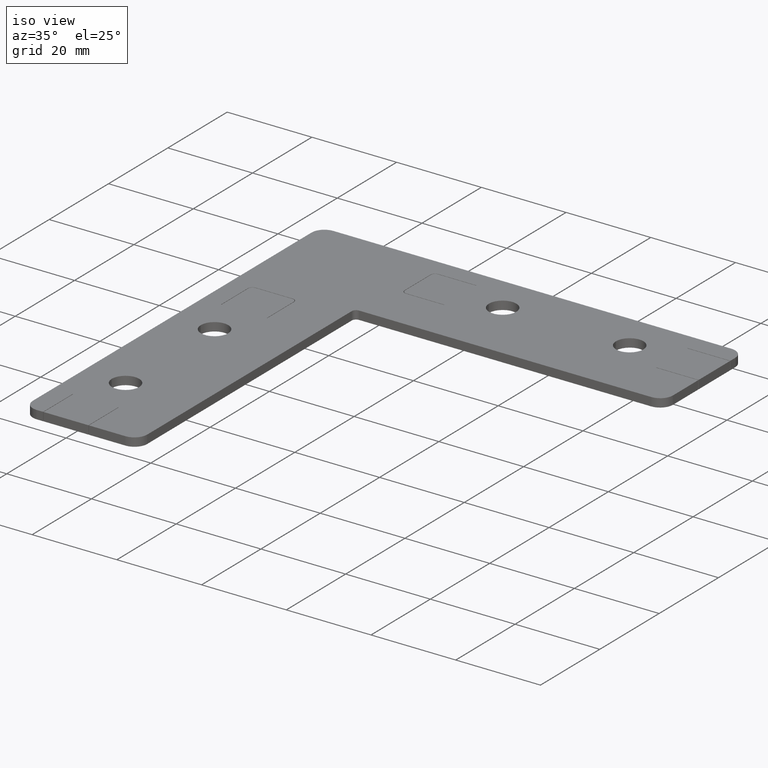
[diagram: clean part render]
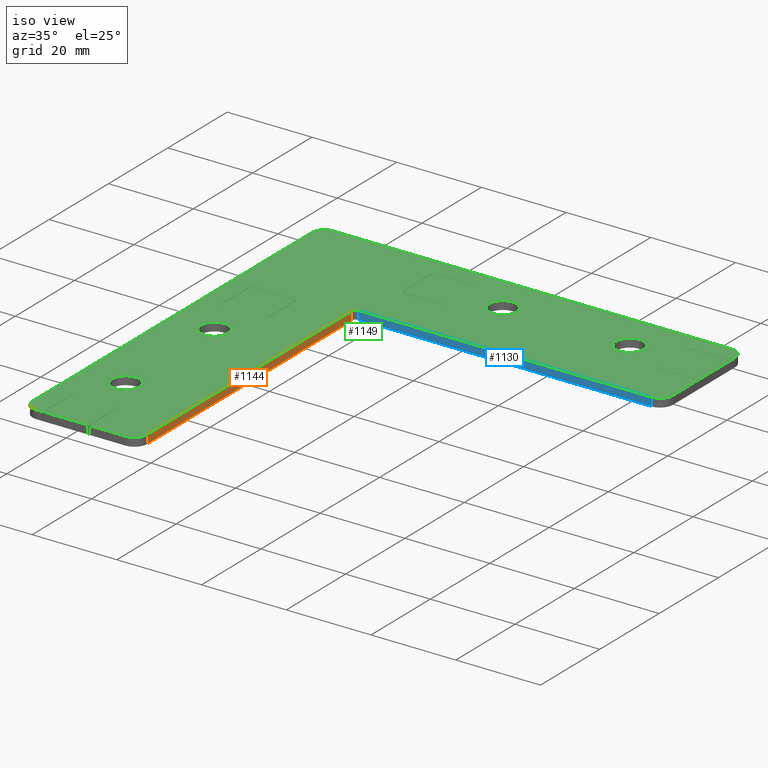
[diagram: same view with three faces highlighted in distinct colors, each labeled with its STEP entity id]
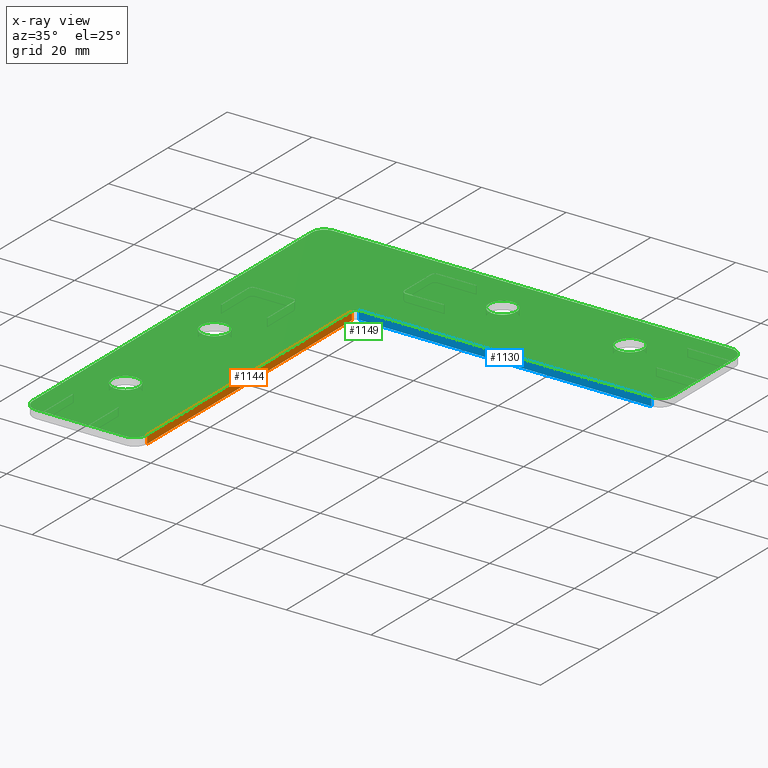
[diagram: x-ray of the same camera — body ghosted, the three highlighted faces saturated]
A machine part, iso view with three faces highlighted in distinct colors.
The next image is the same camera in x-ray (body ghosted, the three faces saturated) — at least one of them is partly hidden behind the body in this view.
Their STEP definitions:

[orange] entity #1144 — the highlighted planar face has unit normal (-1, 0, 0).
#36=PLANE('',#1237);
#82=FACE_OUTER_BOUND('',#140,.T.);
#140=EDGE_LOOP('',(#835,#836,#837,#838));
#231=LINE('',#1630,#363);
#268=LINE('',#1730,#400);
#269=LINE('',#1733,#401);
#270=LINE('',#1734,#402);
#363=VECTOR('',#1308,2.);
#400=VECTOR('',#1395,2.);
#401=VECTOR('',#1400,68.9998597412109);
#402=VECTOR('',#1401,68.9998597412109);
#495=VERTEX_POINT('',#1628);
#496=VERTEX_POINT('',#1629);
#533=VERTEX_POINT('',#1727);
#534=VERTEX_POINT('',#1729);
#607=EDGE_CURVE('',#495,#496,#231,.T.);
#655=EDGE_CURVE('',#534,#533,#268,.T.);
#657=EDGE_CURVE('',#533,#496,#269,.T.);
#658=EDGE_CURVE('',#534,#495,#270,.T.);
#835=ORIENTED_EDGE('',*,*,#655,.T.);
#836=ORIENTED_EDGE('',*,*,#657,.T.);
#837=ORIENTED_EDGE('',*,*,#607,.F.);
#838=ORIENTED_EDGE('',*,*,#658,.F.);
#1144=ADVANCED_FACE('',(#82),#36,.F.);
#1237=AXIS2_PLACEMENT_3D('',#1732,#1398,#1399);
#1308=DIRECTION('',(0.,0.,-1.));
#1395=DIRECTION('',(0.,0.,-1.));
#1398=DIRECTION('center_axis',(-1.,0.,0.));
#1399=DIRECTION('ref_axis',(0.,0.,1.));
#1400=DIRECTION('',(0.,1.,0.));
#1401=DIRECTION('',(0.,1.,0.));
#1628=CARTESIAN_POINT('',(17.05,71.9998597412109,0.));
#1629=CARTESIAN_POINT('',(17.05,71.9998597412109,-2.));
#1630=CARTESIAN_POINT('',(17.05,71.9998597412109,0.));
#1727=CARTESIAN_POINT('',(17.05,3.,-2.));
#1729=CARTESIAN_POINT('',(17.05,3.,0.));
#1730=CARTESIAN_POINT('',(17.05,3.,0.));
#1732=CARTESIAN_POINT('Origin',(17.05,3.,0.));
#1733=CARTESIAN_POINT('',(17.05,3.,-2.));
#1734=CARTESIAN_POINT('',(17.05,3.,0.));

[blue] entity #1130 — the highlighted planar face has unit normal (0, 1, 0).
#27=PLANE('',#1213);
#68=FACE_OUTER_BOUND('',#126,.T.);
#126=EDGE_LOOP('',(#779,#780,#781,#782));
#232=LINE('',#1634,#364);
#233=LINE('',#1638,#365);
#234=LINE('',#1640,#366);
#235=LINE('',#1641,#367);
#364=VECTOR('',#1311,2.);
#365=VECTOR('',#1316,68.9998597412108);
#366=VECTOR('',#1317,2.);
#367=VECTOR('',#1318,68.9998597412108);
#497=VERTEX_POINT('',#1631);
#498=VERTEX_POINT('',#1633);
#499=VERTEX_POINT('',#1637);
#500=VERTEX_POINT('',#1639);
#609=EDGE_CURVE('',#498,#497,#232,.T.);
#611=EDGE_CURVE('',#497,#499,#233,.T.);
#612=EDGE_CURVE('',#500,#499,#234,.T.);
#613=EDGE_CURVE('',#498,#500,#235,.T.);
#779=ORIENTED_EDGE('',*,*,#609,.T.);
#780=ORIENTED_EDGE('',*,*,#611,.T.);
#781=ORIENTED_EDGE('',*,*,#612,.F.);
#782=ORIENTED_EDGE('',*,*,#613,.F.);
#1130=ADVANCED_FACE('',(#68),#27,.F.);
#1213=AXIS2_PLACEMENT_3D('',#1636,#1314,#1315);
#1311=DIRECTION('',(0.,0.,-1.));
#1314=DIRECTION('center_axis',(0.,1.,0.));
#1315=DIRECTION('ref_axis',(0.,0.,1.));
#1316=DIRECTION('',(1.,0.,0.));
#1317=DIRECTION('',(0.,0.,-1.));
#1318=DIRECTION('',(1.,0.,0.));
#1631=CARTESIAN_POINT('',(18.05,72.9998597412109,-2.));
#1633=CARTESIAN_POINT('',(18.05,72.9998597412109,0.));
#1634=CARTESIAN_POINT('',(18.05,72.9998597412109,0.));
#1636=CARTESIAN_POINT('Origin',(18.05,72.9998597412109,0.));
#1637=CARTESIAN_POINT('',(87.0498597412109,72.9998597412109,-2.));
#1638=CARTESIAN_POINT('',(18.05,72.9998597412109,-2.));
#1639=CARTESIAN_POINT('',(87.0498597412109,72.9998597412109,0.));
#1640=CARTESIAN_POINT('',(87.0498597412109,72.9998597412109,0.));
#1641=CARTESIAN_POINT('',(18.05,72.9998597412109,0.));

[green] entity #1149 — the highlighted planar face has unit normal (0, 0, 1).
#15=FACE_BOUND('',#146,.T.);
#16=FACE_BOUND('',#147,.T.);
#17=FACE_BOUND('',#148,.T.);
#18=FACE_BOUND('',#149,.T.);
#19=FACE_BOUND('',#150,.T.);
#20=FACE_BOUND('',#151,.T.);
#37=PLANE('',#1250);
#87=FACE_OUTER_BOUND('',#145,.T.);
#145=EDGE_LOOP('',(#855,#856,#857,#858,#859,#860,#861,#862,#863,#864,#865,
#866,#867,#868,#869,#870,#871,#872,#873,#874,#875,#876,#877,#878,#879,#880,
#881,#882));
#146=EDGE_LOOP('',(#883));
#147=EDGE_LOOP('',(#884));
#148=EDGE_LOOP('',(#885));
#149=EDGE_LOOP('',(#886));
#150=EDGE_LOOP('',(#887,#888,#889,#890,#891,#892,#893,#894,#895,#896,#897,
#898));
#151=EDGE_LOOP('',(#899,#900,#901,#902,#903,#904,#905,#906,#907,#908,#909,
#910));
#196=CIRCLE('',#1212,1.);
#198=CIRCLE('',#1216,3.);
#200=CIRCLE('',#1222,3.);
#202=CIRCLE('',#1226,3.);
#204=CIRCLE('',#1230,3.);
#206=CIRCLE('',#1236,3.);
#207=CIRCLE('',#1239,3.25);
#209=CIRCLE('',#1242,3.25);
#211=CIRCLE('',#1245,3.25);
#213=CIRCLE('',#1248,3.25);
#215=CIRCLE('',#1251,1.1);
#216=CIRCLE('',#1252,1.1);
#217=CIRCLE('',#1253,1.);
#218=CIRCLE('',#1254,1.);
#219=CIRCLE('',#1255,1.1);
#220=CIRCLE('',#1256,1.09999999999989);
#221=CIRCLE('',#1257,0.999999999999886);
#222=CIRCLE('',#1258,1.);
#235=LINE('',#1641,#367);
#239=LINE('',#1653,#371);
#240=LINE('',#1657,#372);
#247=LINE('',#1671,#379);
#251=LINE('',#1683,#383);
#255=LINE('',#1695,#387);
#259=LINE('',#1707,#391);
#260=LINE('',#1711,#392);
#267=LINE('',#1725,#399);
#270=LINE('',#1734,#402);
#275=LINE('',#1761,#407);
#276=LINE('',#1763,#408);
#277=LINE('',#1764,#409);
#278=LINE('',#1766,#410);
#279=LINE('',#1768,#411);
#280=LINE('',#1769,#412);
#281=LINE('',#1771,#413);
#282=LINE('',#1773,#414);
#283=LINE('',#1774,#415);
#284=LINE('',#1776,#416);
#285=LINE('',#1778,#417);
#286=LINE('',#1779,#418);
#287=LINE('',#1782,#419);
#288=LINE('',#1784,#420);
#289=LINE('',#1788,#421);
#290=LINE('',#1792,#422);
#291=LINE('',#1794,#423);
#292=LINE('',#1796,#424);
#293=LINE('',#1800,#425);
#294=LINE('',#1803,#426);
#295=LINE('',#1806,#427);
#296=LINE('',#1808,#428);
#297=LINE('',#1812,#429);
#298=LINE('',#1816,#430);
#299=LINE('',#1818,#431);
#300=LINE('',#1820,#432);
#301=LINE('',#1824,#433);
#302=LINE('',#1827,#434);
#367=VECTOR('',#1318,68.9998597412108);
#371=VECTOR('',#1330,8.55000000000002);
#372=VECTOR('',#1333,1.65000000000003);
#379=VECTOR('',#1342,10.6);
#383=VECTOR('',#1354,93.9998597412108);
#387=VECTOR('',#1366,93.9998597412109);
#391=VECTOR('',#1378,1.55000000000004);
#392=VECTOR('',#1381,8.65000000000004);
#399=VECTOR('',#1390,10.5999999999999);
#402=VECTOR('',#1401,68.9998597412109);
#407=VECTOR('',#1432,9.99999999999998);
#408=VECTOR('',#1433,0.0999999999999979);
#409=VECTOR('',#1434,9.99999999999998);
#410=VECTOR('',#1435,9.99999999999998);
#411=VECTOR('',#1436,0.0999999999999979);
#412=VECTOR('',#1437,9.99999999999998);
#413=VECTOR('',#1438,10.);
#414=VECTOR('',#1439,0.0999999999999945);
#415=VECTOR('',#1440,10.);
#416=VECTOR('',#1441,10.);
#417=VECTOR('',#1442,0.0999999999999923);
#418=VECTOR('',#1443,10.);
#419=VECTOR('',#1444,0.0999999999999945);
#420=VECTOR('',#1445,9.);
#421=VECTOR('',#1448,8.69999999999993);
#422=VECTOR('',#1451,9.);
#423=VECTOR('',#1452,0.0999999999999979);
#424=VECTOR('',#1453,9.);
#425=VECTOR('',#1456,8.69999999999993);
#426=VECTOR('',#1459,9.);
#427=VECTOR('',#1460,0.0999999999999979);
#428=VECTOR('',#1461,9.);
#429=VECTOR('',#1464,8.70000000000008);
#430=VECTOR('',#1467,9.00000000000011);
#431=VECTOR('',#1468,0.0999999999999979);
#432=VECTOR('',#1469,9.00000000000011);
#433=VECTOR('',#1472,8.70000000000008);
#434=VECTOR('',#1475,9.);
#495=VERTEX_POINT('',#1628);
#498=VERTEX_POINT('',#1633);
#500=VERTEX_POINT('',#1639);
#502=VERTEX_POINT('',#1645);
#504=VERTEX_POINT('',#1651);
#505=VERTEX_POINT('',#1655);
#506=VERTEX_POINT('',#1656);
#509=VERTEX_POINT('',#1664);
#512=VERTEX_POINT('',#1669);
#514=VERTEX_POINT('',#1675);
#516=VERTEX_POINT('',#1681);
#518=VERTEX_POINT('',#1687);
#520=VERTEX_POINT('',#1693);
#522=VERTEX_POINT('',#1699);
#524=VERTEX_POINT('',#1705);
#525=VERTEX_POINT('',#1709);
#526=VERTEX_POINT('',#1710);
#529=VERTEX_POINT('',#1718);
#532=VERTEX_POINT('',#1723);
#534=VERTEX_POINT('',#1729);
#535=VERTEX_POINT('',#1736);
#537=VERTEX_POINT('',#1742);
#539=VERTEX_POINT('',#1748);
#541=VERTEX_POINT('',#1754);
#543=VERTEX_POINT('',#1760);
#544=VERTEX_POINT('',#1762);
#545=VERTEX_POINT('',#1765);
#546=VERTEX_POINT('',#1767);
#547=VERTEX_POINT('',#1770);
#548=VERTEX_POINT('',#1772);
#549=VERTEX_POINT('',#1775);
#550=VERTEX_POINT('',#1777);
#551=VERTEX_POINT('',#1780);
#552=VERTEX_POINT('',#1781);
#553=VERTEX_POINT('',#1783);
#554=VERTEX_POINT('',#1785);
#555=VERTEX_POINT('',#1787);
#556=VERTEX_POINT('',#1789);
#557=VERTEX_POINT('',#1791);
#558=VERTEX_POINT('',#1793);
#559=VERTEX_POINT('',#1795);
#560=VERTEX_POINT('',#1797);
#561=VERTEX_POINT('',#1799);
#562=VERTEX_POINT('',#1801);
#563=VERTEX_POINT('',#1804);
#564=VERTEX_POINT('',#1805);
#565=VERTEX_POINT('',#1807);
#566=VERTEX_POINT('',#1809);
#567=VERTEX_POINT('',#1811);
#568=VERTEX_POINT('',#1813);
#569=VERTEX_POINT('',#1815);
#570=VERTEX_POINT('',#1817);
#571=VERTEX_POINT('',#1819);
#572=VERTEX_POINT('',#1821);
#573=VERTEX_POINT('',#1823);
#574=VERTEX_POINT('',#1825);
#610=EDGE_CURVE('',#495,#498,#196,.T.);
#613=EDGE_CURVE('',#498,#500,#235,.T.);
#616=EDGE_CURVE('',#500,#502,#198,.T.);
#619=EDGE_CURVE('',#502,#504,#239,.T.);
#620=EDGE_CURVE('',#505,#506,#240,.T.);
#627=EDGE_CURVE('',#509,#512,#247,.T.);
#630=EDGE_CURVE('',#506,#514,#200,.T.);
#633=EDGE_CURVE('',#514,#516,#251,.T.);
#636=EDGE_CURVE('',#516,#518,#202,.T.);
#639=EDGE_CURVE('',#518,#520,#255,.T.);
#642=EDGE_CURVE('',#520,#522,#204,.T.);
#645=EDGE_CURVE('',#522,#524,#259,.T.);
#646=EDGE_CURVE('',#525,#526,#260,.T.);
#653=EDGE_CURVE('',#529,#532,#267,.T.);
#656=EDGE_CURVE('',#526,#534,#206,.T.);
#658=EDGE_CURVE('',#534,#495,#270,.T.);
#659=EDGE_CURVE('',#535,#535,#207,.T.);
#662=EDGE_CURVE('',#537,#537,#209,.T.);
#665=EDGE_CURVE('',#539,#539,#211,.T.);
#668=EDGE_CURVE('',#541,#541,#213,.T.);
#671=EDGE_CURVE('',#504,#543,#275,.T.);
#672=EDGE_CURVE('',#543,#544,#276,.T.);
#673=EDGE_CURVE('',#544,#509,#277,.T.);
#674=EDGE_CURVE('',#512,#545,#278,.T.);
#675=EDGE_CURVE('',#545,#546,#279,.T.);
#676=EDGE_CURVE('',#546,#505,#280,.T.);
#677=EDGE_CURVE('',#524,#547,#281,.T.);
#678=EDGE_CURVE('',#547,#548,#282,.T.);
#679=EDGE_CURVE('',#548,#529,#283,.T.);
#680=EDGE_CURVE('',#532,#549,#284,.T.);
#681=EDGE_CURVE('',#549,#550,#285,.T.);
#682=EDGE_CURVE('',#550,#525,#286,.T.);
#683=EDGE_CURVE('',#551,#552,#287,.T.);
#684=EDGE_CURVE('',#553,#551,#288,.T.);
#685=EDGE_CURVE('',#554,#553,#215,.T.);
#686=EDGE_CURVE('',#555,#554,#289,.T.);
#687=EDGE_CURVE('',#556,#555,#216,.T.);
#688=EDGE_CURVE('',#557,#556,#290,.T.);
#689=EDGE_CURVE('',#558,#557,#291,.T.);
#690=EDGE_CURVE('',#559,#558,#292,.T.);
#691=EDGE_CURVE('',#560,#559,#217,.T.);
#692=EDGE_CURVE('',#561,#560,#293,.T.);
#693=EDGE_CURVE('',#562,#561,#218,.T.);
#694=EDGE_CURVE('',#552,#562,#294,.T.);
#695=EDGE_CURVE('',#563,#564,#295,.T.);
#696=EDGE_CURVE('',#565,#563,#296,.T.);
#697=EDGE_CURVE('',#566,#565,#219,.T.);
#698=EDGE_CURVE('',#567,#566,#297,.T.);
#699=EDGE_CURVE('',#568,#567,#220,.T.);
#700=EDGE_CURVE('',#569,#568,#298,.T.);
#701=EDGE_CURVE('',#570,#569,#299,.T.);
#702=EDGE_CURVE('',#571,#570,#300,.T.);
#703=EDGE_CURVE('',#572,#571,#221,.T.);
#704=EDGE_CURVE('',#573,#572,#301,.T.);
#705=EDGE_CURVE('',#574,#573,#222,.T.);
#706=EDGE_CURVE('',#564,#574,#302,.T.);
#855=ORIENTED_EDGE('',*,*,#610,.T.);
#856=ORIENTED_EDGE('',*,*,#613,.T.);
#857=ORIENTED_EDGE('',*,*,#616,.T.);
#858=ORIENTED_EDGE('',*,*,#619,.T.);
#859=ORIENTED_EDGE('',*,*,#671,.T.);
#860=ORIENTED_EDGE('',*,*,#672,.T.);
#861=ORIENTED_EDGE('',*,*,#673,.T.);
#862=ORIENTED_EDGE('',*,*,#627,.T.);
#863=ORIENTED_EDGE('',*,*,#674,.T.);
#864=ORIENTED_EDGE('',*,*,#675,.T.);
#865=ORIENTED_EDGE('',*,*,#676,.T.);
#866=ORIENTED_EDGE('',*,*,#620,.T.);
#867=ORIENTED_EDGE('',*,*,#630,.T.);
#868=ORIENTED_EDGE('',*,*,#633,.T.);
#869=ORIENTED_EDGE('',*,*,#636,.T.);
#870=ORIENTED_EDGE('',*,*,#639,.T.);
#871=ORIENTED_EDGE('',*,*,#642,.T.);
#872=ORIENTED_EDGE('',*,*,#645,.T.);
#873=ORIENTED_EDGE('',*,*,#677,.T.);
#874=ORIENTED_EDGE('',*,*,#678,.T.);
#875=ORIENTED_EDGE('',*,*,#679,.T.);
#876=ORIENTED_EDGE('',*,*,#653,.T.);
#877=ORIENTED_EDGE('',*,*,#680,.T.);
#878=ORIENTED_EDGE('',*,*,#681,.T.);
#879=ORIENTED_EDGE('',*,*,#682,.T.);
#880=ORIENTED_EDGE('',*,*,#646,.T.);
#881=ORIENTED_EDGE('',*,*,#656,.T.);
#882=ORIENTED_EDGE('',*,*,#658,.T.);
#883=ORIENTED_EDGE('',*,*,#659,.T.);
#884=ORIENTED_EDGE('',*,*,#662,.T.);
#885=ORIENTED_EDGE('',*,*,#665,.T.);
#886=ORIENTED_EDGE('',*,*,#668,.T.);
#887=ORIENTED_EDGE('',*,*,#683,.F.);
#888=ORIENTED_EDGE('',*,*,#684,.F.);
#889=ORIENTED_EDGE('',*,*,#685,.F.);
#890=ORIENTED_EDGE('',*,*,#686,.F.);
#891=ORIENTED_EDGE('',*,*,#687,.F.);
#892=ORIENTED_EDGE('',*,*,#688,.F.);
#893=ORIENTED_EDGE('',*,*,#689,.F.);
#894=ORIENTED_EDGE('',*,*,#690,.F.);
#895=ORIENTED_EDGE('',*,*,#691,.F.);
#896=ORIENTED_EDGE('',*,*,#692,.F.);
#897=ORIENTED_EDGE('',*,*,#693,.F.);
#898=ORIENTED_EDGE('',*,*,#694,.F.);
#899=ORIENTED_EDGE('',*,*,#695,.F.);
#900=ORIENTED_EDGE('',*,*,#696,.F.);
#901=ORIENTED_EDGE('',*,*,#697,.F.);
#902=ORIENTED_EDGE('',*,*,#698,.F.);
#903=ORIENTED_EDGE('',*,*,#699,.F.);
#904=ORIENTED_EDGE('',*,*,#700,.F.);
#905=ORIENTED_EDGE('',*,*,#701,.F.);
#906=ORIENTED_EDGE('',*,*,#702,.F.);
#907=ORIENTED_EDGE('',*,*,#703,.F.);
#908=ORIENTED_EDGE('',*,*,#704,.F.);
#909=ORIENTED_EDGE('',*,*,#705,.F.);
#910=ORIENTED_EDGE('',*,*,#706,.F.);
#1149=ADVANCED_FACE('',(#87,#15,#16,#17,#18,#19,#20),#37,.T.);
#1212=AXIS2_PLACEMENT_3D('',#1635,#1312,#1313);
#1216=AXIS2_PLACEMENT_3D('',#1647,#1324,#1325);
#1222=AXIS2_PLACEMENT_3D('',#1677,#1348,#1349);
#1226=AXIS2_PLACEMENT_3D('',#1689,#1360,#1361);
#1230=AXIS2_PLACEMENT_3D('',#1701,#1372,#1373);
#1236=AXIS2_PLACEMENT_3D('',#1731,#1396,#1397);
#1239=AXIS2_PLACEMENT_3D('',#1737,#1404,#1405);
#1242=AXIS2_PLACEMENT_3D('',#1743,#1411,#1412);
#1245=AXIS2_PLACEMENT_3D('',#1749,#1418,#1419);
#1248=AXIS2_PLACEMENT_3D('',#1755,#1425,#1426);
#1250=AXIS2_PLACEMENT_3D('',#1759,#1430,#1431);
#1251=AXIS2_PLACEMENT_3D('',#1786,#1446,#1447);
#1252=AXIS2_PLACEMENT_3D('',#1790,#1449,#1450);
#1253=AXIS2_PLACEMENT_3D('',#1798,#1454,#1455);
#1254=AXIS2_PLACEMENT_3D('',#1802,#1457,#1458);
#1255=AXIS2_PLACEMENT_3D('',#1810,#1462,#1463);
#1256=AXIS2_PLACEMENT_3D('',#1814,#1465,#1466);
#1257=AXIS2_PLACEMENT_3D('',#1822,#1470,#1471);
#1258=AXIS2_PLACEMENT_3D('',#1826,#1473,#1474);
#1312=DIRECTION('center_axis',(0.,0.,-1.));
#1313=DIRECTION('ref_axis',(1.,0.,0.));
#1318=DIRECTION('',(1.,0.,0.));
#1324=DIRECTION('center_axis',(0.,0.,1.));
#1325=DIRECTION('ref_axis',(1.,0.,0.));
#1330=DIRECTION('',(0.,1.,0.));
#1333=DIRECTION('',(0.,1.,0.));
#1342=DIRECTION('',(0.,1.,0.));
#1348=DIRECTION('center_axis',(0.,0.,1.));
#1349=DIRECTION('ref_axis',(1.,0.,0.));
#1354=DIRECTION('',(-1.,0.,0.));
#1360=DIRECTION('center_axis',(0.,0.,1.));
#1361=DIRECTION('ref_axis',(1.,0.,0.));
#1366=DIRECTION('',(0.,-1.,0.));
#1372=DIRECTION('center_axis',(0.,0.,1.));
#1373=DIRECTION('ref_axis',(1.,0.,0.));
#1378=DIRECTION('',(1.,0.,0.));
#1381=DIRECTION('',(1.,0.,0.));
#1390=DIRECTION('',(1.,0.,0.));
#1396=DIRECTION('center_axis',(0.,0.,1.));
#1397=DIRECTION('ref_axis',(1.,0.,0.));
#1401=DIRECTION('',(0.,1.,0.));
#1404=DIRECTION('center_axis',(0.,0.,-1.));
#1405=DIRECTION('ref_axis',(1.,0.,0.));
#1411=DIRECTION('center_axis',(0.,0.,-1.));
#1412=DIRECTION('ref_axis',(1.,0.,0.));
#1418=DIRECTION('center_axis',(0.,0.,-1.));
#1419=DIRECTION('ref_axis',(1.,0.,0.));
#1425=DIRECTION('center_axis',(0.,0.,-1.));
#1426=DIRECTION('ref_axis',(1.,0.,0.));
#1430=DIRECTION('center_axis',(0.,0.,1.));
#1431=DIRECTION('ref_axis',(1.,0.,0.));
#1432=DIRECTION('',(-1.,0.,0.));
#1433=DIRECTION('',(0.,1.,0.));
#1434=DIRECTION('',(1.,0.,0.));
#1435=DIRECTION('',(-1.,0.,0.));
#1436=DIRECTION('',(0.,1.,0.));
#1437=DIRECTION('',(1.,0.,0.));
#1438=DIRECTION('',(0.,1.,0.));
#1439=DIRECTION('',(1.,0.,0.));
#1440=DIRECTION('',(0.,-1.,0.));
#1441=DIRECTION('',(0.,1.,0.));
#1442=DIRECTION('',(1.,0.,0.));
#1443=DIRECTION('',(0.,-1.,0.));
#1444=DIRECTION('',(1.,0.,0.));
#1445=DIRECTION('',(0.,-1.,0.));
#1446=DIRECTION('center_axis',(0.,0.,1.));
#1447=DIRECTION('ref_axis',(1.,0.,0.));
#1448=DIRECTION('',(-1.,0.,0.));
#1449=DIRECTION('center_axis',(0.,0.,1.));
#1450=DIRECTION('ref_axis',(1.,0.,0.));
#1451=DIRECTION('',(0.,1.,0.));
#1452=DIRECTION('',(1.,0.,0.));
#1453=DIRECTION('',(0.,-1.,0.));
#1454=DIRECTION('center_axis',(0.,0.,-1.));
#1455=DIRECTION('ref_axis',(1.,0.,0.));
#1456=DIRECTION('',(1.,0.,0.));
#1457=DIRECTION('center_axis',(0.,0.,-1.));
#1458=DIRECTION('ref_axis',(1.,0.,0.));
#1459=DIRECTION('',(0.,1.,0.));
#1460=DIRECTION('',(0.,1.,0.));
#1461=DIRECTION('',(1.,0.,0.));
#1462=DIRECTION('center_axis',(0.,0.,1.));
#1463=DIRECTION('ref_axis',(1.,0.,0.));
#1464=DIRECTION('',(0.,-1.,0.));
#1465=DIRECTION('center_axis',(0.,0.,1.));
#1466=DIRECTION('ref_axis',(1.,0.,0.));
#1467=DIRECTION('',(-1.,0.,0.));
#1468=DIRECTION('',(0.,1.,0.));
#1469=DIRECTION('',(1.,0.,0.));
#1470=DIRECTION('center_axis',(0.,0.,-1.));
#1471=DIRECTION('ref_axis',(1.,0.,0.));
#1472=DIRECTION('',(0.,1.,0.));
#1473=DIRECTION('center_axis',(0.,0.,-1.));
#1474=DIRECTION('ref_axis',(1.,0.,0.));
#1475=DIRECTION('',(-1.,0.,0.));
#1628=CARTESIAN_POINT('',(17.05,71.9998597412109,0.));
#1633=CARTESIAN_POINT('',(18.05,72.9998597412109,0.));
#1635=CARTESIAN_POINT('Origin',(18.05,71.9998597412109,0.));
#1639=CARTESIAN_POINT('',(87.0498597412109,72.9998597412109,0.));
#1641=CARTESIAN_POINT('',(18.05,72.9998597412109,0.));
#1645=CARTESIAN_POINT('',(90.0498597412109,75.9998597412109,0.));
#1647=CARTESIAN_POINT('Origin',(87.0498597412109,75.9998597412109,0.));
#1651=CARTESIAN_POINT('',(90.0498597412109,84.5498597412109,0.));
#1653=CARTESIAN_POINT('',(90.0498597412109,75.9998597412109,0.));
#1655=CARTESIAN_POINT('',(90.0498597412109,95.3498597412109,0.));
#1656=CARTESIAN_POINT('',(90.0498597412109,96.9998597412109,0.));
#1657=CARTESIAN_POINT('',(90.0498597412109,95.3498597412109,0.));
#1664=CARTESIAN_POINT('',(90.0498597412109,84.6498597412109,0.));
#1669=CARTESIAN_POINT('',(90.0498597412109,95.2498597412109,0.));
#1671=CARTESIAN_POINT('',(90.0498597412109,84.6498597412109,0.));
#1675=CARTESIAN_POINT('',(87.0498597412109,99.9998597412109,0.));
#1677=CARTESIAN_POINT('Origin',(87.0498597412109,96.9998597412109,0.));
#1681=CARTESIAN_POINT('',(-6.94999999999999,99.9998597412109,0.));
#1683=CARTESIAN_POINT('',(87.0498597412109,99.9998597412109,0.));
#1687=CARTESIAN_POINT('',(-9.94999999999999,96.9998597412109,0.));
#1689=CARTESIAN_POINT('Origin',(-6.94999999999999,96.9998597412109,0.));
#1693=CARTESIAN_POINT('',(-9.94999999999999,3.,0.));
#1695=CARTESIAN_POINT('',(-9.94999999999999,96.9998597412109,0.));
#1699=CARTESIAN_POINT('',(-6.94999999999999,0.,0.));
#1701=CARTESIAN_POINT('Origin',(-6.94999999999999,3.,0.));
#1705=CARTESIAN_POINT('',(-5.39999999999995,0.,0.));
#1707=CARTESIAN_POINT('',(-6.94999999999999,0.,0.));
#1709=CARTESIAN_POINT('',(5.39999999999998,0.,0.));
#1710=CARTESIAN_POINT('',(14.05,0.,0.));
#1711=CARTESIAN_POINT('',(5.39999999999998,0.,0.));
#1718=CARTESIAN_POINT('',(-5.29999999999995,0.,0.));
#1723=CARTESIAN_POINT('',(5.29999999999998,0.,0.));
#1725=CARTESIAN_POINT('',(-5.29999999999995,0.,0.));
#1729=CARTESIAN_POINT('',(17.05,3.,0.));
#1731=CARTESIAN_POINT('Origin',(14.05,3.,0.));
#1734=CARTESIAN_POINT('',(17.05,3.,0.));
#1736=CARTESIAN_POINT('',(-3.19999999999999,50.,0.));
#1737=CARTESIAN_POINT('Origin',(0.050000000000011,50.,0.));
#1742=CARTESIAN_POINT('',(-3.19999999999999,20.,0.));
#1743=CARTESIAN_POINT('Origin',(0.050000000000011,20.,0.));
#1748=CARTESIAN_POINT('',(36.7998597412109,89.9998597412109,0.));
#1749=CARTESIAN_POINT('Origin',(40.0498597412109,89.9998597412109,0.));
#1754=CARTESIAN_POINT('',(66.7998597412109,89.9998597412109,0.));
#1755=CARTESIAN_POINT('Origin',(70.0498597412109,89.9998597412109,0.));
#1759=CARTESIAN_POINT('Origin',(-19.9501059747863,-10.0001059745464,0.));
#1760=CARTESIAN_POINT('',(80.0498597412109,84.5498597412109,0.));
#1761=CARTESIAN_POINT('',(90.0498597412109,84.5498597412109,0.));
#1762=CARTESIAN_POINT('',(80.0498597412109,84.6498597412109,0.));
#1763=CARTESIAN_POINT('',(80.0498597412109,84.5498597412109,0.));
#1764=CARTESIAN_POINT('',(80.0498597412109,84.6498597412109,0.));
#1765=CARTESIAN_POINT('',(80.0498597412109,95.2498597412109,0.));
#1766=CARTESIAN_POINT('',(90.0498597412109,95.2498597412109,0.));
#1767=CARTESIAN_POINT('',(80.0498597412109,95.3498597412109,0.));
#1768=CARTESIAN_POINT('',(80.0498597412109,95.2498597412109,0.));
#1769=CARTESIAN_POINT('',(80.0498597412109,95.3498597412109,0.));
#1770=CARTESIAN_POINT('',(-5.39999999999995,10.,0.));
#1771=CARTESIAN_POINT('',(-5.39999999999995,0.,0.));
#1772=CARTESIAN_POINT('',(-5.29999999999995,10.,0.));
#1773=CARTESIAN_POINT('',(-5.39999999999995,10.,0.));
#1774=CARTESIAN_POINT('',(-5.29999999999995,10.,0.));
#1775=CARTESIAN_POINT('',(5.29999999999998,10.,0.));
#1776=CARTESIAN_POINT('',(5.29999999999998,0.,0.));
#1777=CARTESIAN_POINT('',(5.39999999999998,10.,0.));
#1778=CARTESIAN_POINT('',(5.29999999999998,10.,0.));
#1779=CARTESIAN_POINT('',(5.39999999999998,10.,0.));
#1780=CARTESIAN_POINT('',(-5.39999999999995,60.,0.));
#1781=CARTESIAN_POINT('',(-5.29999999999995,60.,0.));
#1782=CARTESIAN_POINT('',(-5.39999999999995,60.,0.));
#1783=CARTESIAN_POINT('',(-5.39999999999995,69.,0.));
#1784=CARTESIAN_POINT('',(-5.39999999999995,69.,0.));
#1785=CARTESIAN_POINT('',(-4.29999999999995,70.1,0.));
#1786=CARTESIAN_POINT('Origin',(-4.29999999999995,69.,0.));
#1787=CARTESIAN_POINT('',(4.39999999999998,70.1,0.));
#1788=CARTESIAN_POINT('',(4.39999999999998,70.1,0.));
#1789=CARTESIAN_POINT('',(5.49999999999997,69.,0.));
#1790=CARTESIAN_POINT('Origin',(4.39999999999998,69.,0.));
#1791=CARTESIAN_POINT('',(5.49999999999997,60.,0.));
#1792=CARTESIAN_POINT('',(5.49999999999997,60.,0.));
#1793=CARTESIAN_POINT('',(5.39999999999998,60.,0.));
#1794=CARTESIAN_POINT('',(5.39999999999998,60.,0.));
#1795=CARTESIAN_POINT('',(5.39999999999998,69.,0.));
#1796=CARTESIAN_POINT('',(5.39999999999998,69.,0.));
#1797=CARTESIAN_POINT('',(4.39999999999998,70.,0.));
#1798=CARTESIAN_POINT('Origin',(4.39999999999998,69.,0.));
#1799=CARTESIAN_POINT('',(-4.29999999999995,70.,0.));
#1800=CARTESIAN_POINT('',(-4.29999999999995,70.,0.));
#1801=CARTESIAN_POINT('',(-5.29999999999995,69.,0.));
#1802=CARTESIAN_POINT('Origin',(-4.29999999999995,69.,0.));
#1803=CARTESIAN_POINT('',(-5.29999999999995,60.,0.));
#1804=CARTESIAN_POINT('',(30.0498597412109,84.5498597412109,0.));
#1805=CARTESIAN_POINT('',(30.0498597412109,84.6498597412109,0.));
#1806=CARTESIAN_POINT('',(30.0498597412109,84.5498597412109,0.));
#1807=CARTESIAN_POINT('',(21.0498597412109,84.5498597412109,0.));
#1808=CARTESIAN_POINT('',(21.0498597412109,84.5498597412109,0.));
#1809=CARTESIAN_POINT('',(19.9498597412109,85.6498597412109,0.));
#1810=CARTESIAN_POINT('Origin',(21.0498597412109,85.6498597412109,0.));
#1811=CARTESIAN_POINT('',(19.9498597412109,94.349859741211,0.));
#1812=CARTESIAN_POINT('',(19.9498597412109,94.349859741211,0.));
#1813=CARTESIAN_POINT('',(21.0498597412108,95.4498597412109,0.));
#1814=CARTESIAN_POINT('Origin',(21.0498597412108,94.349859741211,0.));
#1815=CARTESIAN_POINT('',(30.0498597412109,95.4498597412109,0.));
#1816=CARTESIAN_POINT('',(30.0498597412109,95.4498597412109,0.));
#1817=CARTESIAN_POINT('',(30.0498597412109,95.3498597412109,0.));
#1818=CARTESIAN_POINT('',(30.0498597412109,95.3498597412109,0.));
#1819=CARTESIAN_POINT('',(21.0498597412108,95.3498597412109,0.));
#1820=CARTESIAN_POINT('',(21.0498597412108,95.3498597412109,0.));
#1821=CARTESIAN_POINT('',(20.0498597412109,94.349859741211,0.));
#1822=CARTESIAN_POINT('Origin',(21.0498597412108,94.349859741211,0.));
#1823=CARTESIAN_POINT('',(20.0498597412109,85.6498597412109,0.));
#1824=CARTESIAN_POINT('',(20.0498597412109,85.6498597412109,0.));
#1825=CARTESIAN_POINT('',(21.0498597412109,84.6498597412109,0.));
#1826=CARTESIAN_POINT('Origin',(21.0498597412109,85.6498597412109,0.));
#1827=CARTESIAN_POINT('',(30.0498597412109,84.6498597412109,0.));